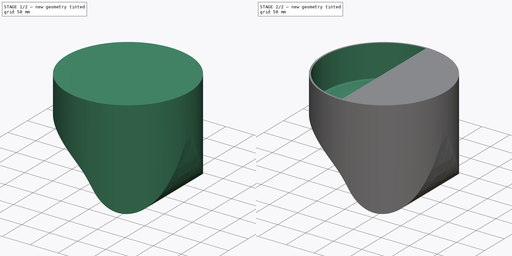
[diagram: build sequence overview — one tinted view per stage of 2, left to right]
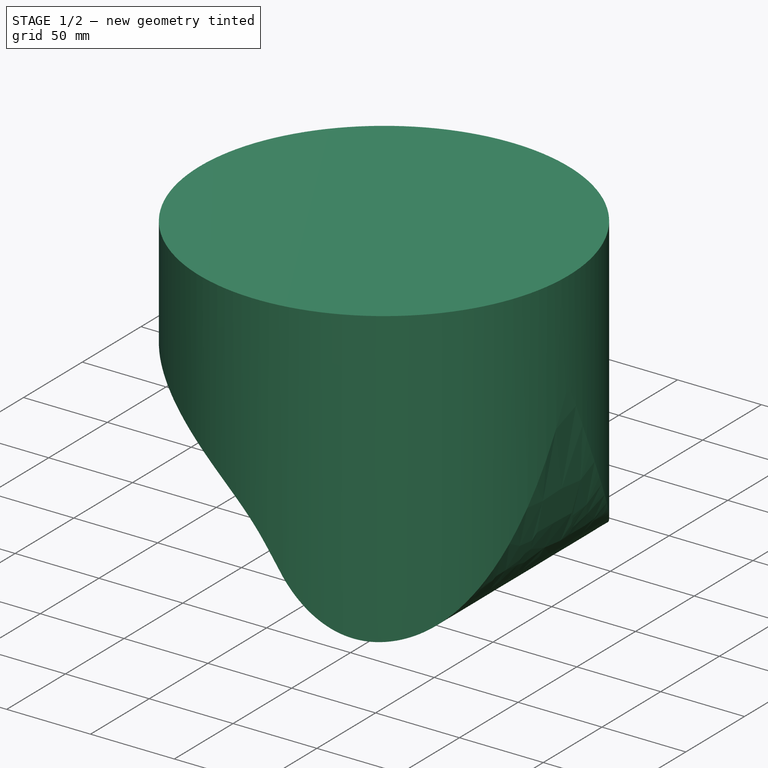
[diagram: stage 1 of 2 — iso view after this stage's code; geometry added in this stage tinted green]
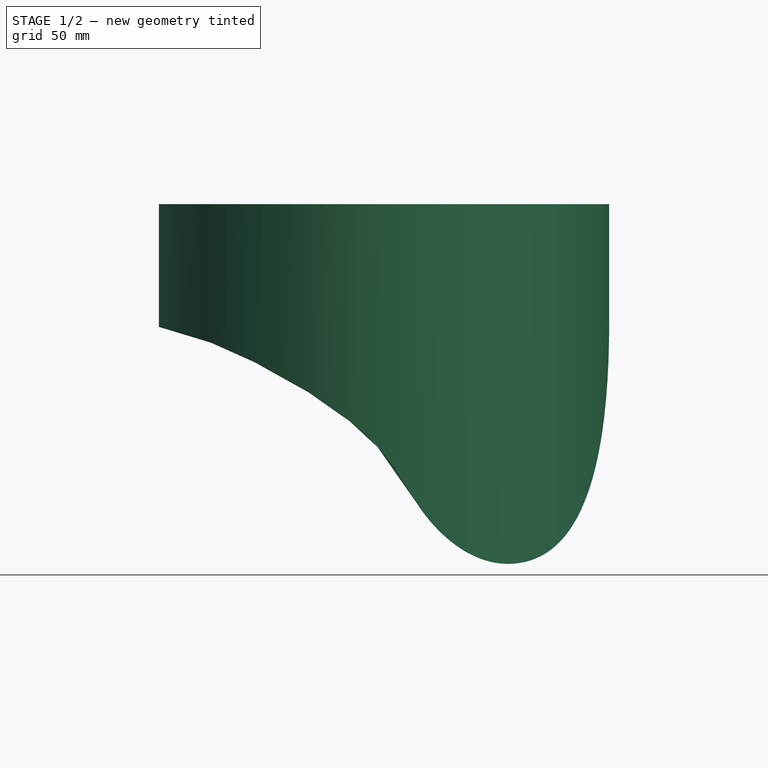
[diagram: stage 1 of 2 — front view after this stage's code; geometry added in this stage tinted green]
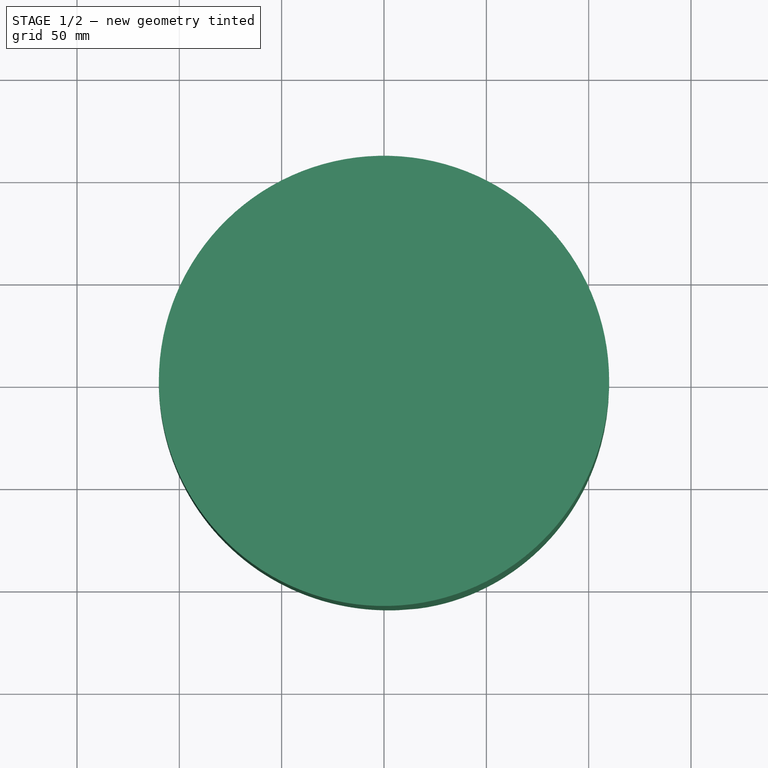
[diagram: stage 1 of 2 — top view after this stage's code; geometry added in this stage tinted green]
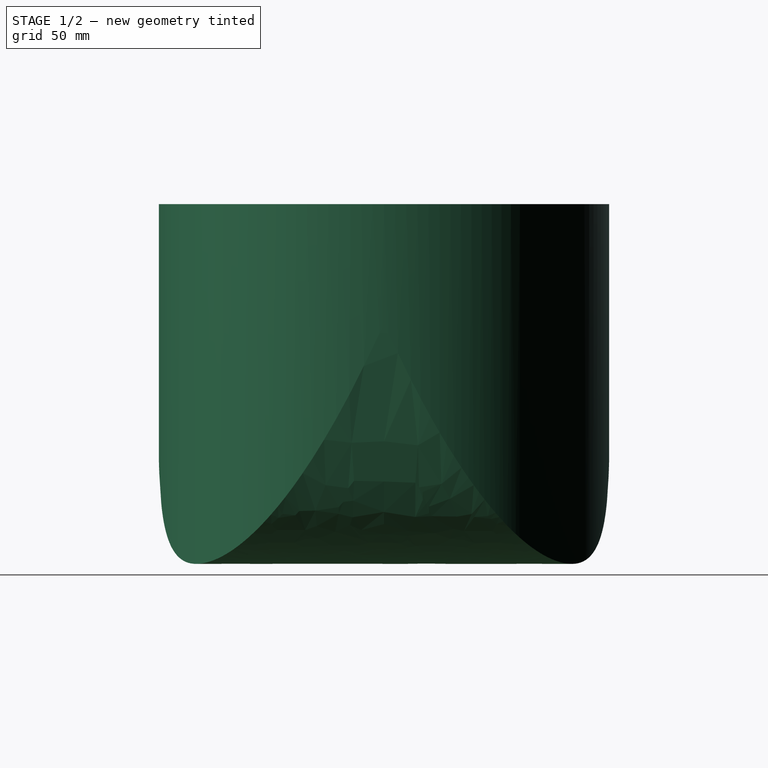
[diagram: stage 1 of 2 — right view after this stage's code; geometry added in this stage tinted green]
FCSTD DOCUMENT  (FreeCAD 0.19R24291 (Git))
Label: tms_v3_base
License: All rights reserved
LicenseURL: http://en.wikipedia.org/wiki/All_rights_reserved
objects: Sketcher::SketchObject×4, PartDesign::Pad×1, PartDesign::Pocket×1, PartDesign::Groove×1, PartDesign::Body×1
note: 11 computed .brp shape members not serialized (recipe doc carries the construction recipe); baked Part::Feature solids carry a one-line shape summary decoded from their .brp

FEATURE [Sketcher::SketchObject] Sketch
  FullyConstrained = true
  MapMode = 5
  Support = -> [XY_Plane]
  sketch-geometry (1):
    g0: Circle CenterX=0 CenterY=0 CenterZ=0 NormalX=0 NormalY=0 NormalZ=1 AngleXU=0 Radius=110
  constraints (2):
    c: Coincident(g0,g-1)
    c: Radius(g0) = 110
FEATURE [PartDesign::Pad] Pad
  Direction = (1,1,1)
  Length = 220
  Length2 = 100
  Profile = -> Sketch
  Refine = true
  Type = 0
FEATURE [Sketcher::SketchObject] Sketch001
  ExternalGeometry = -> [Pad]
  FullyConstrained = false
  MapMode = 5
  Placement = pos=(0,0,0) rot=(1,0,0;1.5708rad)
  Support = -> [XZ_Plane]
  sketch-geometry (17):
    g0-g5: Circle x6 (B-spline internal-alignment scaffolding for g7; pole/knot coordinates omitted)
    g6: Circle CenterX=109.876 CenterY=112.612 CenterZ=0 NormalX=0 NormalY=0 NormalZ=1 AngleXU=0 Radius=6.01534
    g7: BSplineCurve PolesCount=7 KnotsCount=5 Degree=3 IsPeriodic=0
    g8: GeomPoint X=-193.111 Y=87.2212 Z=0
    g9: GeomPoint X=-16.8505 Y=113.974 Z=0
    g10: GeomPoint X=39.7295 Y=79.4912 Z=0
    g11: GeomPoint X=89.5343 Y=70.7418 Z=0
    g12: GeomPoint X=186.397 Y=86.6798 Z=0
    g13: LineSegment StartX=110 StartY=160 StartZ=0 EndX=110 EndY=160 EndZ=0
    g14: LineSegment StartX=110 StartY=160 StartZ=0 EndX=110 EndY=-70 EndZ=0
    g15: LineSegment StartX=110 StartY=-70 StartZ=0 EndX=-110 EndY=-70 EndZ=0
    g16: LineSegment StartX=-110 StartY=-70 StartZ=0 EndX=-110 EndY=160 EndZ=0
  constraints (16):
    c: Equal(g0, g1-g5) x5
    c: InternalAlignment(g0-g5 -> g7) x6
    c: Coincident(g15,g16)
    c: Coincident(g16,g7)
    c: Vertical(g16)
    c: Equal(g14,g16)
    c: DistanceY(g7,g-3) = 60
    c: Symmetric(g14,g15,g-2)
    c: Coincident(g13,g14)
    c: PointOnObject(g13,g-4)
    c: Coincident(g13,g7)
    c: Vertical(g14)
    c: Coincident(g15,g14)
    c: DistanceX(g15,g15) = 220
    c: DistanceY(g14,g14) = 230
    c: Horizontal(g13)
FEATURE [PartDesign::Pocket] Pocket
  BaseFeature = -> Pad
  Length = 500
  Length2 = 100
  Midplane = true
  Profile = -> Sketch001
  Refine = true
  Type = 0
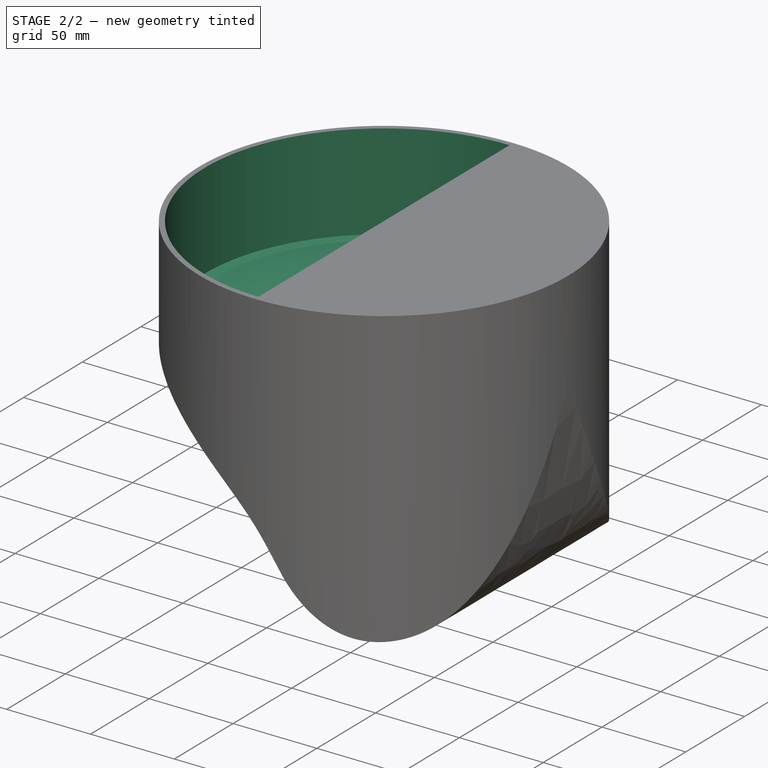
[diagram: stage 2 of 2 — iso view after this stage's code; geometry added in this stage tinted green]
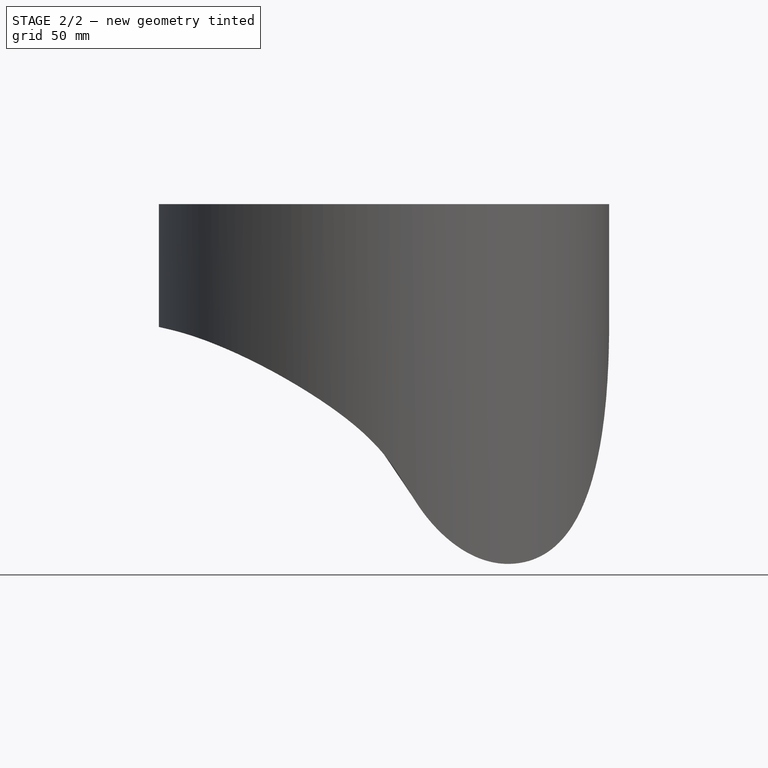
[diagram: stage 2 of 2 — front view after this stage's code; geometry added in this stage tinted green]
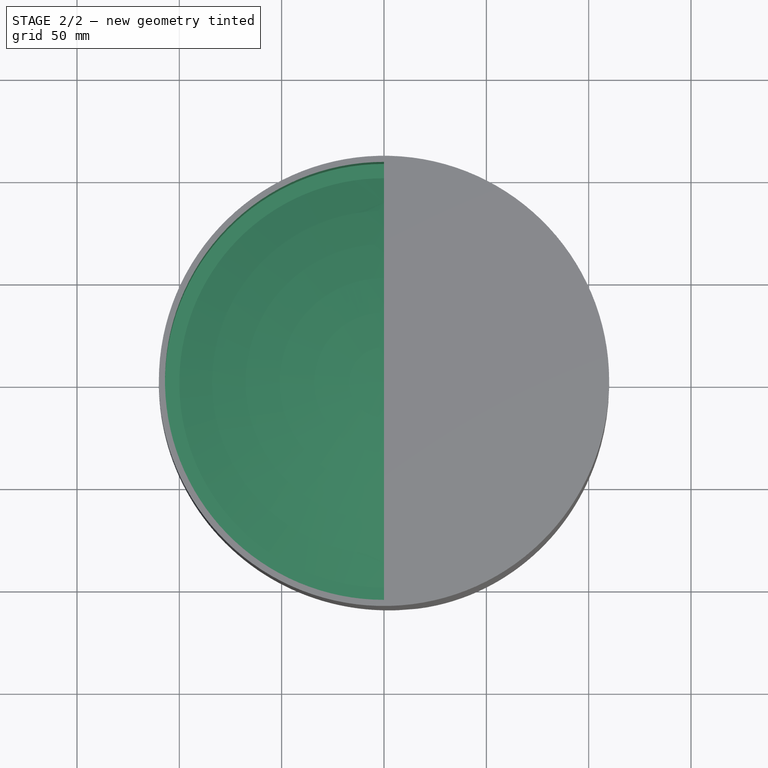
[diagram: stage 2 of 2 — top view after this stage's code; geometry added in this stage tinted green]
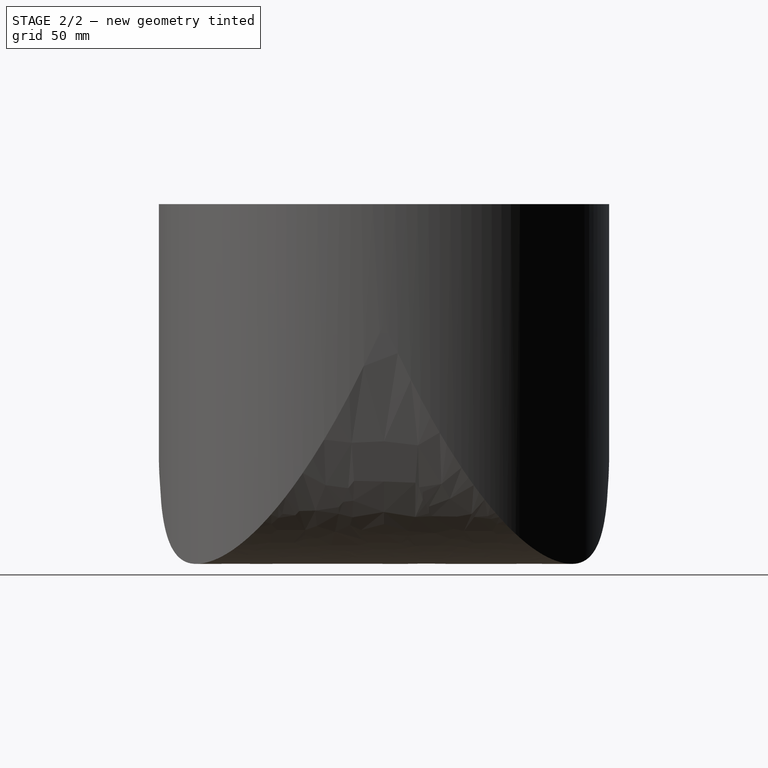
[diagram: stage 2 of 2 — right view after this stage's code; geometry added in this stage tinted green]
FEATURE [Sketcher::SketchObject] Sketch002
  ExternalGeometry = -> [Pocket]
  FullyConstrained = true
  MapMode = 5
  Placement = pos=(0,0,0) rot=(1,0,0;1.5708rad)
  Support = -> [XZ_Plane]
  sketch-geometry (9):
    g0: LineSegment StartX=-100 StartY=55 StartZ=0 EndX=-100 EndY=160 EndZ=0
    g1: ArcOfCircle CenterX=0 CenterY=-80 CenterZ=0 NormalX=0 NormalY=0 NormalZ=1 AngleXU=0 Radius=260 StartAngle=1.5708 EndAngle=1.96559
    g2: LineSegment StartX=1.59e-14 StartY=180 StartZ=0 EndX=1.59e-14 EndY=55 EndZ=0
    g3: LineSegment StartX=1.59e-14 StartY=55 StartZ=0 EndX=-100 EndY=55 EndZ=0
    g4: ArcOfCircle CenterX=0 CenterY=-77 CenterZ=0 NormalX=0 NormalY=0 NormalZ=1 AngleXU=0 Radius=260 StartAngle=1.5708 EndAngle=1.96559
    g5: LineSegment StartX=1.59e-14 StartY=183 StartZ=0 EndX=1.59e-14 EndY=233 EndZ=0
    g6: LineSegment StartX=1.59e-14 StartY=233 StartZ=0 EndX=-107 EndY=233 EndZ=0
    g7: LineSegment StartX=-107 StartY=233 StartZ=0 EndX=-107 EndY=163 EndZ=0
    g8: LineSegment StartX=-107 StartY=163 StartZ=0 EndX=-100 EndY=163 EndZ=0
  constraints (29):
    c: Vertical(g0)
    c: Coincident(g1,g2)
    c: Vertical(g2)
    c: Coincident(g2,g3)
    c: Coincident(g3,g0)
    c: Horizontal(g3)
    c: PointOnObject(g1,g-2)
    c: Coincident(g0,g1)
    c: DistanceX(g3,g3) = 100
    c: PointOnObject(g1,g2)
    c: DistanceY(g0,g-3) = 60
    c: DistanceY(g1,g-3) = 40
    c: DistanceY(g2,g2) = 125
    c: PointOnObject(g4,g-2)
    c: DistanceY(g1,g4) = 3
    c: DistanceY(g1,g4) = 3
    c: Coincident(g4,g5)
    c: Coincident(g5,g6)
    c: Horizontal(g6)
    c: DistanceX(g6,g6) = 107
    c: Vertical(g5)
    c: PointOnObject(g4,g-2)
    c: DistanceY(g5,g5) = 50
    c: Coincident(g7,g6)
    c: Vertical(g7)
    c: Coincident(g8,g7)
    c: Coincident(g8,g4)
    c: Horizontal(g8)
    c: DistanceX(g8,g8) = 7
FEATURE [PartDesign::Groove] Groove
  Angle = 180
  Axis = (-3e-16,3e-16,1)
  Base = (0,0,0)
  BaseFeature = -> Pocket
  Midplane = true
  Profile = -> Sketch002
  ReferenceAxis = -> Z_Axis
  Refine = true
  Reversed = true
FEATURE [Sketcher::SketchObject] Sketch003
  ExternalGeometry = -> [Groove]
  FullyConstrained = false
  MapMode = 5
  Placement = pos=(0,0,0) rot=(1,0,0;1.5708rad)
  Support = -> [XZ_Plane]
  sketch-geometry (4):
    g0: LineSegment StartX=7.4e-15 StartY=13.2824 StartZ=0 EndX=7.4e-15 EndY=160 EndZ=0
    g1: ArcOfCircle CenterX=0 CenterY=38.606 CenterZ=0 NormalX=0 NormalY=0 NormalZ=1 AngleXU=0 Radius=121.394 StartAngle=0.602778 EndAngle=1.5708
    g2: LineSegment StartX=100 StartY=107.428 StartZ=0 EndX=100 EndY=13.2824 EndZ=0
    g3: LineSegment StartX=100 StartY=13.2824 StartZ=0 EndX=1.42e-14 EndY=13.2824 EndZ=0
  constraints (11):
    c: PointOnObject(g0,g-2)
    c: Vertical(g0)
    c: Coincident(g1,g0)
    c: Coincident(g1,g2)
    c: Vertical(g2)
    c: DistanceY(g0,g-3) = 60
    c: DistanceX(g-1,g2) = 100
    c: PointOnObject(g1,g0)
    c: Coincident(g3,g2)
    c: Coincident(g3,g0)
    c: Horizontal(g3)
FEATURE [PartDesign::Body] Body
  Group = -> [Sketch,Pad,Sketch001,Pocket,Sketch002,Groove,Sketch003]
  Origin = -> Origin
  Tip = -> Groove
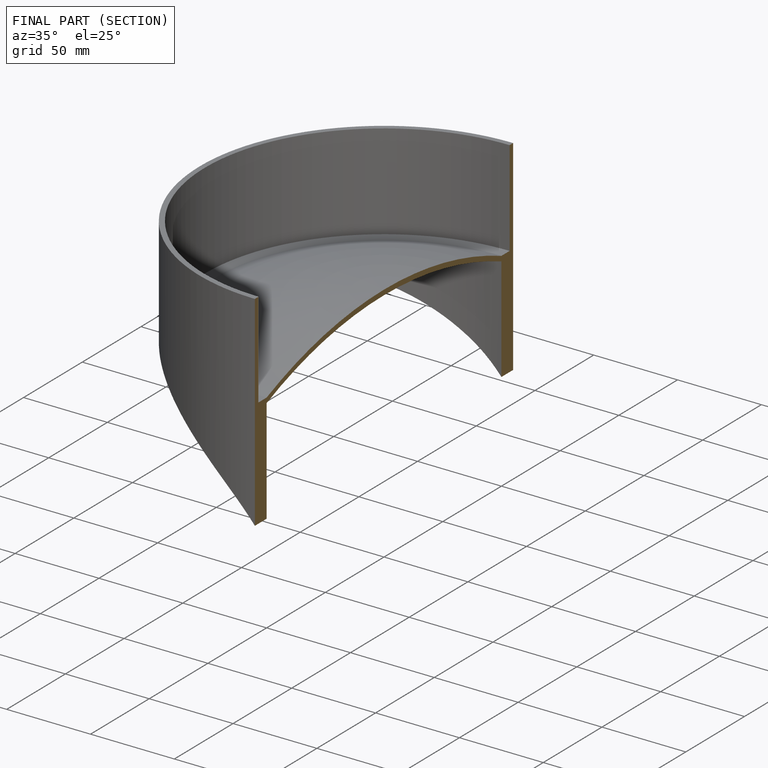
[diagram: finished part — half-section view (interior)]
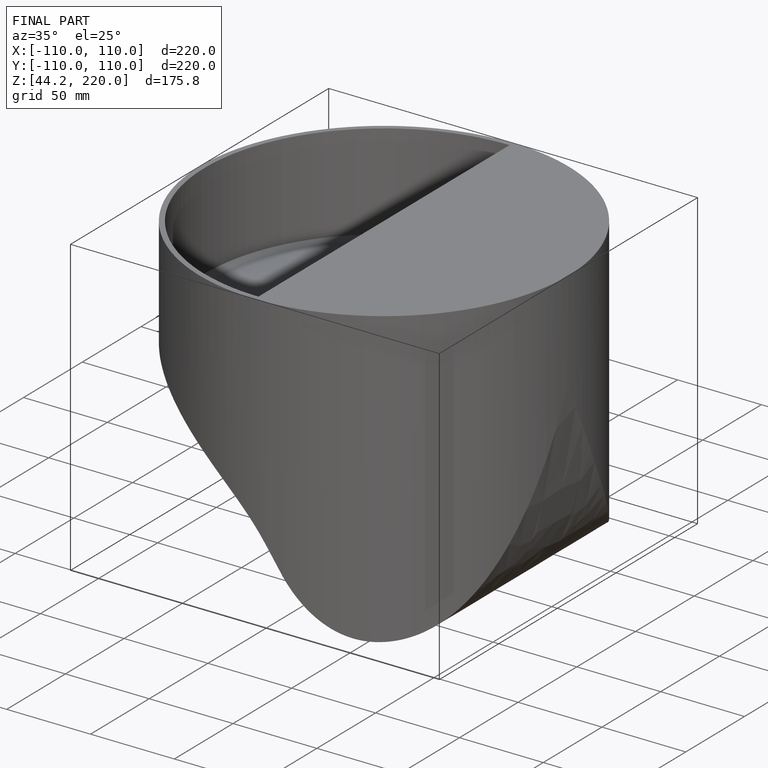
[diagram: finished part — iso view with bounding-box wireframe]
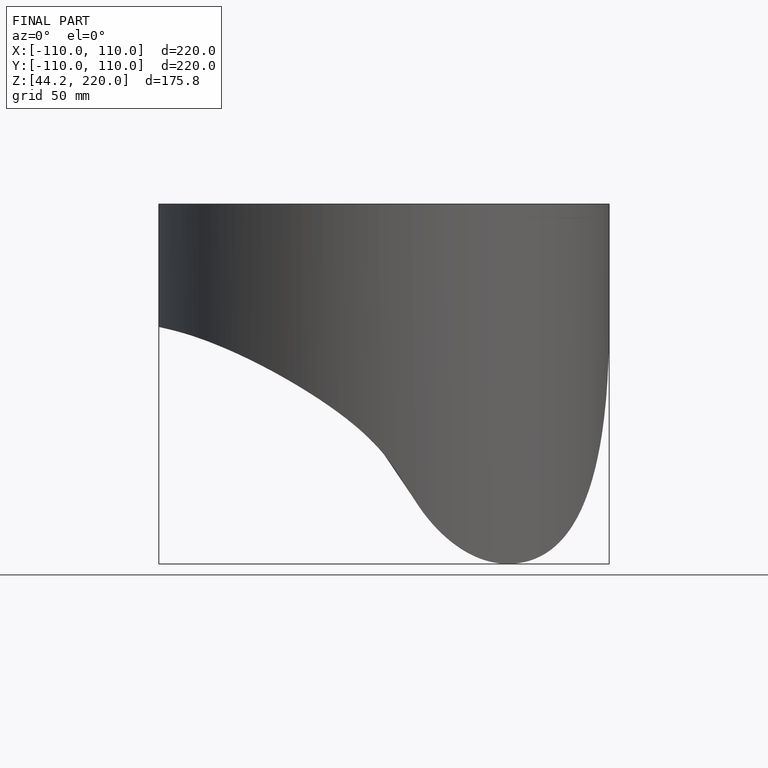
[diagram: finished part — front view with bounding-box wireframe]
